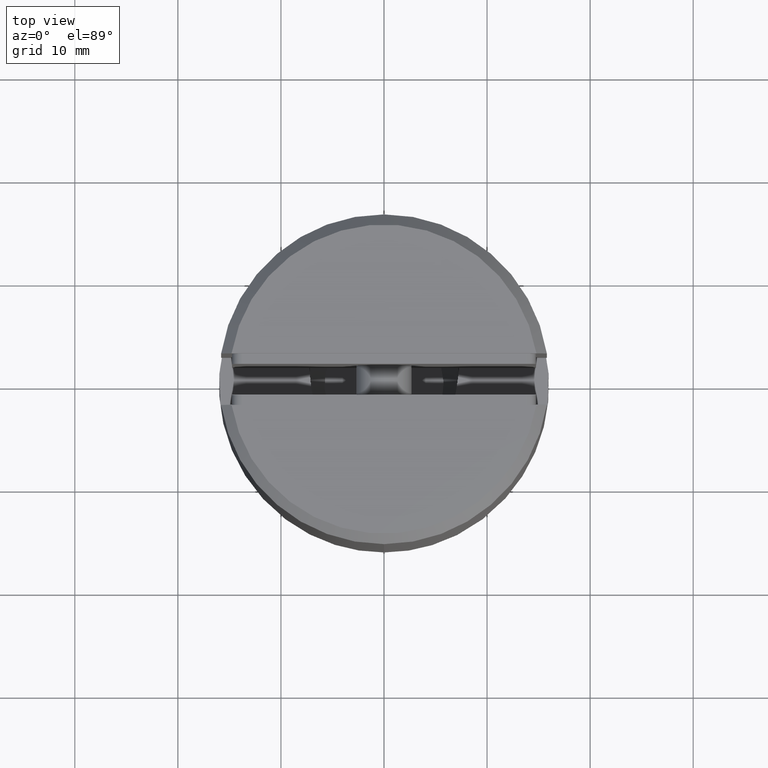
[diagram: clean part render]
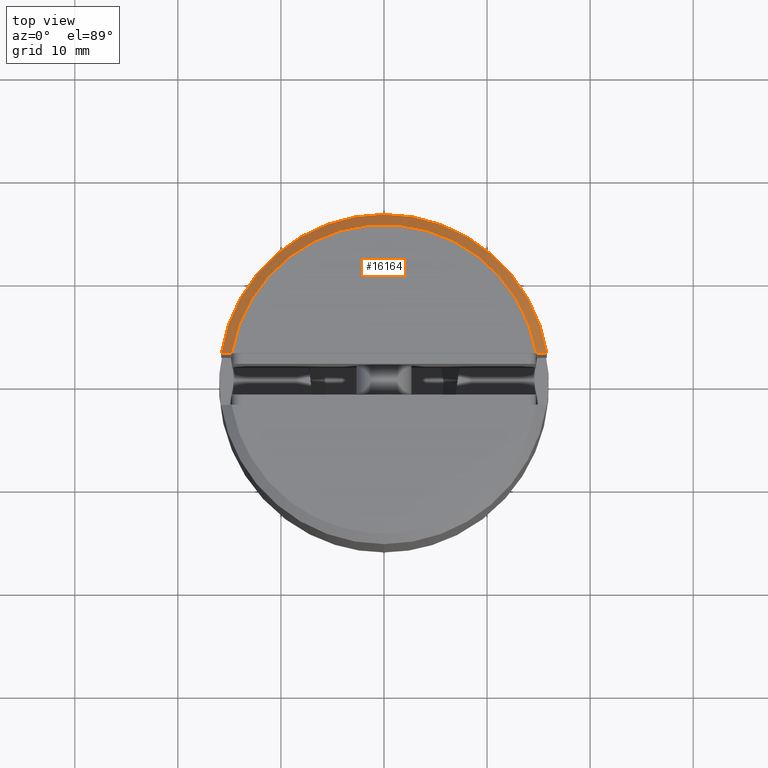
[diagram: same view with one face highlighted and labeled with its STEP entity id]
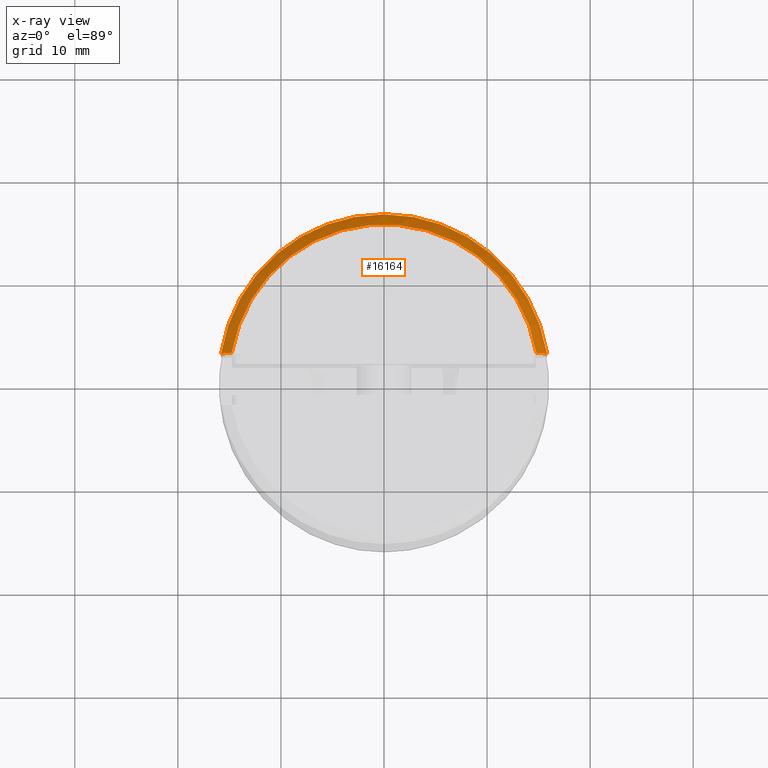
[diagram: x-ray of the same camera — body ghosted, the highlighted face saturated]
A machine part, top view. The second image highlights one B-rep face of the part: STEP entity #16164.
The next image is the same camera in x-ray: the body ghosted, the highlighted face saturated — about 0% of this face is hidden behind the body in this view.
In plain terms, the highlighted conical surface has half-angle 45 deg.
Its self-contained STEP definition (entity closure, byte-faithful):
#138 = CIRCLE ( 'NONE', #336, 16.00000000000000000 ) ;
#336 = AXIS2_PLACEMENT_3D ( 'NONE', #14646, #6244, #15991 ) ;
#520 = CARTESIAN_POINT ( 'NONE',  ( 0.000000000000000000, 0.000000000000000000, 25.00000000000000000 ) ) ;
#1370 = CARTESIAN_POINT ( 'NONE',  ( -15.80348062927910924, 2.500000000000000444, 23.99999999999998934 ) ) ;
#1497 = CARTESIAN_POINT ( 'NONE',  ( -15.46585946293021863, 2.500000000000000444, 24.33347434765182271 ) ) ;
#2094 = CARTESIAN_POINT ( 'NONE',  ( 15.46585946293022218, 2.500000000000000444, 24.33347434765182271 ) ) ;
#3233 = DIRECTION ( 'NONE',  ( 1.000000000000000000, 0.000000000000000000, 0.000000000000000000 ) ) ;
#3485 = CARTESIAN_POINT ( 'NONE',  ( 14.79019945774903633, 2.500000000000000444, 25.00000000000000000 ) ) ;
#3823 = VERTEX_POINT ( 'NONE', #3948 ) ;
#3948 = CARTESIAN_POINT ( 'NONE',  ( -14.79019945774903455, 2.500000000000000444, 25.00000000000000000 ) ) ;
#4352 = ORIENTED_EDGE ( 'NONE', *, *, #18043, .F. ) ;
#5410 = VERTEX_POINT ( 'NONE', #16006 ) ;
#5590 = CARTESIAN_POINT ( 'NONE',  ( 0.000000000000000000, 0.000000000000000000, 25.00000000000000000 ) ) ;
#5667 = CARTESIAN_POINT ( 'NONE',  ( -14.79019945774903455, 2.500000000000000444, 25.00000000000000000 ) ) ;
#6075 = AXIS2_PLACEMENT_3D ( 'NONE', #520, #10116, #3233 ) ;
#6244 = DIRECTION ( 'NONE',  ( 0.000000000000000000, 0.000000000000000000, -1.000000000000000000 ) ) ;
#6352 = CARTESIAN_POINT ( 'NONE',  ( 15.12810841561664787, 2.500000000000000444, 24.66681727430519544 ) ) ;
#7412 = CARTESIAN_POINT ( 'NONE',  ( 15.80348062927910924, 2.500000000000000444, 23.99999999999998934 ) ) ;
#7778 = B_SPLINE_CURVE_WITH_KNOTS ( 'NONE', 3,
 ( #5667, #12684, #1497, #15415 ),
 .UNSPECIFIED., .F., .F.,
 ( 4, 4 ),
 ( 0.000000000000000000, 0.001423635744345227083 ),
 .UNSPECIFIED. ) ;
#10116 = DIRECTION ( 'NONE',  ( 0.000000000000000000, 0.000000000000000000, 1.000000000000000000 ) ) ;
#10185 = DIRECTION ( 'NONE',  ( -1.000000000000000000, 0.000000000000000000, 0.000000000000000000 ) ) ;
#10246 = EDGE_CURVE ( 'NONE', #10281, #17208, #138, .T. ) ;
#10281 = VERTEX_POINT ( 'NONE', #1370 ) ;
#10675 = B_SPLINE_CURVE_WITH_KNOTS ( 'NONE', 3,
 ( #11912, #2094, #6352, #3485 ),
 .UNSPECIFIED., .F., .F.,
 ( 4, 4 ),
 ( 0.000000000000000000, 0.001423635744345223830 ),
 .UNSPECIFIED. ) ;
#10891 = ORIENTED_EDGE ( 'NONE', *, *, #11892, .F. ) ;
#11045 = FACE_OUTER_BOUND ( 'NONE', #17425, .T. ) ;
#11892 = EDGE_CURVE ( 'NONE', #3823, #10281, #7778, .T. ) ;
#11912 = CARTESIAN_POINT ( 'NONE',  ( 15.80348062927910924, 2.500000000000000444, 23.99999999999998934 ) ) ;
#12033 = ORIENTED_EDGE ( 'NONE', *, *, #10246, .F. ) ;
#12684 = CARTESIAN_POINT ( 'NONE',  ( -15.12810841561664610, 2.500000000000000444, 24.66681727430519544 ) ) ;
#13075 = AXIS2_PLACEMENT_3D ( 'NONE', #5590, #15409, #10185 ) ;
#13839 = CIRCLE ( 'NONE', #6075, 14.99999999999999645 ) ;
#14646 = CARTESIAN_POINT ( 'NONE',  ( 0.000000000000000000, 0.000000000000000000, 23.99999999999998934 ) ) ;
#14941 = CONICAL_SURFACE ( 'NONE', #13075, 14.99999999999999645, 0.7853981633974447263 ) ;
#14990 = ORIENTED_EDGE ( 'NONE', *, *, #17604, .F. ) ;
#15409 = DIRECTION ( 'NONE',  ( 0.000000000000000000, 0.000000000000000000, -1.000000000000000000 ) ) ;
#15415 = CARTESIAN_POINT ( 'NONE',  ( -15.80348062927910924, 2.500000000000000444, 23.99999999999998934 ) ) ;
#15991 = DIRECTION ( 'NONE',  ( 1.000000000000000000, 0.000000000000000000, 0.000000000000000000 ) ) ;
#16006 = CARTESIAN_POINT ( 'NONE',  ( 14.79019945774903633, 2.500000000000000444, 25.00000000000000000 ) ) ;
#16164 = ADVANCED_FACE ( 'NONE', ( #11045 ), #14941, .T. ) ;
#17208 = VERTEX_POINT ( 'NONE', #7412 ) ;
#17425 = EDGE_LOOP ( 'NONE', ( #4352, #12033, #10891, #14990 ) ) ;
#17604 = EDGE_CURVE ( 'NONE', #5410, #3823, #13839, .T. ) ;
#18043 = EDGE_CURVE ( 'NONE', #17208, #5410, #10675, .T. ) ;